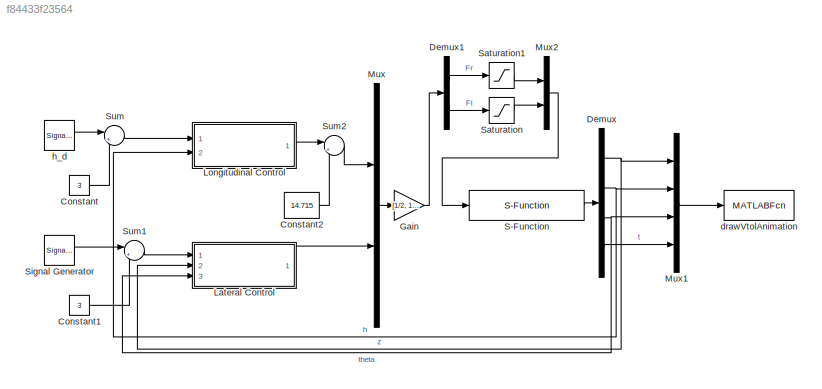
MODEL slx_f84433f23564
KIND model
CONFIG AbsTol = auto
CONFIG EnableMultiTasking = off
CONFIG FixedStep = auto
CONFIG InitFcn = planar_vtol_param\n
CONFIG MaxStep = 1
CONFIG MinStep = .75
CONFIG RelTol = 1e-3
CONFIG SampleTimeConstraint = Unconstrained
CONFIG Solver = ode45
CONFIG SolverName = ode45
CONFIG StartTime = 0.0
CONFIG StopTime = 20
BLOCK [Constant] Constant
  Value = 3
BLOCK [Constant] Constant1
  Value = 3
BLOCK [Constant] Constant2
  Value = 14.715
BLOCK [Demux] Demux
  DisplayOption = bar
  Ports = [1, 4]
BLOCK [Demux] Demux1
  DisplayOption = bar
  Outputs = 2
  Ports = [1, 2]
BLOCK [Gain] Gain
  Gain = [1/2, 1/.6; 1/2, -1/.6]
  Multiplication = Matrix(K*u)
  OutDataTypeStr = Inherit: Inherit via internal rule
  ParamDataTypeStr = Inherit: Inherit via internal rule
  SaturateOnIntegerOverflow = off
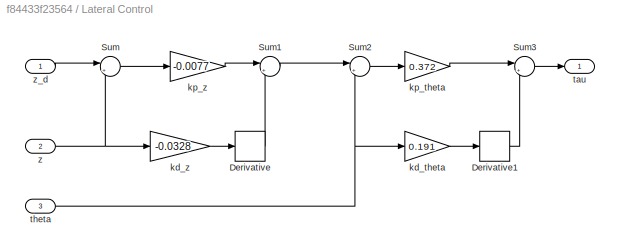
BLOCK [SubSystem] Lateral Control
  Ports = [3, 1]
  RequestExecContextInheritance = off
BLOCK [Derivative] Lateral Control/Derivative
BLOCK [Derivative] Lateral Control/Derivative1
BLOCK [Sum] Lateral Control/Sum
  IconShape = round
  InputSameDT = off
  Inputs = |+-
  OutDataTypeStr = Inherit: Inherit via internal rule
  Ports = [2, 1]
  SaturateOnIntegerOverflow = off
BLOCK [Sum] Lateral Control/Sum1
  IconShape = round
  InputSameDT = off
  Inputs = |+-
  OutDataTypeStr = Inherit: Inherit via internal rule
  Ports = [2, 1]
  SaturateOnIntegerOverflow = off
BLOCK [Sum] Lateral Control/Sum2
  IconShape = round
  InputSameDT = off
  Inputs = |+-
  OutDataTypeStr = Inherit: Inherit via internal rule
  Ports = [2, 1]
  SaturateOnIntegerOverflow = off
BLOCK [Sum] Lateral Control/Sum3
  IconShape = round
  InputSameDT = off
  Inputs = |+-
  OutDataTypeStr = Inherit: Inherit via internal rule
  Ports = [2, 1]
  SaturateOnIntegerOverflow = off
BLOCK [Gain] Lateral Control/kd_theta
  Gain = 0.191
  OutDataTypeStr = Inherit: Inherit via internal rule
  ParamDataTypeStr = Inherit: Inherit via internal rule
  SaturateOnIntegerOverflow = off
BLOCK [Gain] Lateral Control/kd_z
  Gain = -0.0328
  OutDataTypeStr = Inherit: Inherit via internal rule
  ParamDataTypeStr = Inherit: Inherit via internal rule
  SaturateOnIntegerOverflow = off
BLOCK [Gain] Lateral Control/kp_theta
  Gain = 0.372
  OutDataTypeStr = Inherit: Inherit via internal rule
  ParamDataTypeStr = Inherit: Inherit via internal rule
  SaturateOnIntegerOverflow = off
BLOCK [Gain] Lateral Control/kp_z
  Gain = -0.0077
  OutDataTypeStr = Inherit: Inherit via internal rule
  ParamDataTypeStr = Inherit: Inherit via internal rule
  SaturateOnIntegerOverflow = off
BLOCK [Outport] Lateral Control/tau
  IconDisplay = Port number
BLOCK [Inport] Lateral Control/theta
  IconDisplay = Port number
  Port = 3
BLOCK [Inport] Lateral Control/z
  IconDisplay = Port number
  Port = 2
BLOCK [Inport] Lateral Control/z_d
  IconDisplay = Port number
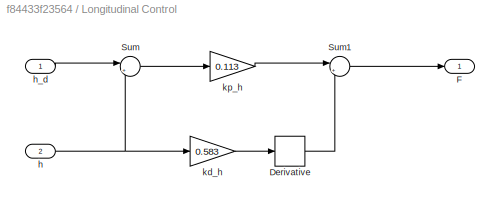
BLOCK [SubSystem] Longitudinal Control
  Ports = [2, 1]
  RequestExecContextInheritance = off
BLOCK [Derivative] Longitudinal Control/Derivative
BLOCK [Outport] Longitudinal Control/F
  IconDisplay = Port number
BLOCK [Sum] Longitudinal Control/Sum
  IconShape = round
  InputSameDT = off
  Inputs = |+-
  OutDataTypeStr = Inherit: Inherit via internal rule
  Ports = [2, 1]
  SaturateOnIntegerOverflow = off
BLOCK [Sum] Longitudinal Control/Sum1
  IconShape = round
  InputSameDT = off
  Inputs = |+-
  OutDataTypeStr = Inherit: Inherit via internal rule
  Ports = [2, 1]
  SaturateOnIntegerOverflow = off
BLOCK [Inport] Longitudinal Control/h
  IconDisplay = Port number
  Port = 2
BLOCK [Inport] Longitudinal Control/h_d
  IconDisplay = Port number
BLOCK [Gain] Longitudinal Control/kd_h
  Gain = 0.583
  OutDataTypeStr = Inherit: Inherit via internal rule
  ParamDataTypeStr = Inherit: Inherit via internal rule
  SaturateOnIntegerOverflow = off
BLOCK [Gain] Longitudinal Control/kp_h
  Gain = 0.113
  OutDataTypeStr = Inherit: Inherit via internal rule
  ParamDataTypeStr = Inherit: Inherit via internal rule
  SaturateOnIntegerOverflow = off
BLOCK [Mux] Mux
  DisplayOption = bar
  Inputs = 2
  Ports = [2, 1]
BLOCK [Mux] Mux1
  DisplayOption = bar
  Ports = [4, 1]
BLOCK [Mux] Mux2
  DisplayOption = bar
  Inputs = 2
  Ports = [2, 1]
BLOCK [S-Function] S-Function
  EnableBusSupport = off
  FunctionName = planar_vtol_dynamics
  Parameters = Pa
  Ports = [1, 1]
  SFcnIsStateOwnerBlock = off
  SFunctionDeploymentMode = off
BLOCK [Saturate] Saturation
  InputPortMap = u0
  LowerLimit = -10
  Ports = [1, 1]
  UpperLimit = 10
BLOCK [Saturate] Saturation1
  InputPortMap = u0
  LowerLimit = -10
  Ports = [1, 1]
  UpperLimit = 10
BLOCK [SignalGenerator] Signal Generator
  Amplitude = 2.5
  Frequency = 0.08
  Ports = [0, 1]
  WaveForm = square
BLOCK [Sum] Sum
  IconShape = round
  InputSameDT = off
  Inputs = |++
  OutDataTypeStr = Inherit: Inherit via internal rule
  Ports = [2, 1]
  SaturateOnIntegerOverflow = off
BLOCK [Sum] Sum1
  IconShape = round
  InputSameDT = off
  Inputs = |++
  OutDataTypeStr = Inherit: Inherit via internal rule
  Ports = [2, 1]
  SaturateOnIntegerOverflow = off
BLOCK [Sum] Sum2
  IconShape = round
  InputSameDT = off
  Inputs = |++
  OutDataTypeStr = Inherit: Inherit via internal rule
  Ports = [2, 1]
  SaturateOnIntegerOverflow = off
BLOCK [MATLABFcn] drawVtolAnimation
  MATLABFcn = planar_vtol_animation(u)
  OutputDimensions = 0
  Ports = [1]
BLOCK [SignalGenerator] h_d
  Amplitude = 2.5
  Frequency = 0.08
  Ports = [0, 1]
  WaveForm = square
LINE Constant1:1 -> Sum1:2
LINE Constant2:1 -> Sum2:2
LINE Constant:1 -> Sum:2
LINE Demux1:1 -> Saturation1:1
LINE Demux1:2 -> Saturation:1
NET Demux:1 -> Lateral Control:2, Mux1:1
NET Demux:2 -> Longitudinal Control:2, Mux1:2
NET Demux:3 -> Lateral Control:3, Mux1:3
LINE Demux:4 -> Mux1:4
LINE Gain:1 -> Demux1:1
LINE Lateral Control/Derivative1:1 -> Lateral Control/Sum3:2
LINE Lateral Control/Derivative:1 -> Lateral Control/Sum1:2
LINE Lateral Control/Sum1:1 -> Lateral Control/Sum2:1
LINE Lateral Control/Sum2:1 -> Lateral Control/kp_theta:1
LINE Lateral Control/Sum3:1 -> Lateral Control/tau:1
LINE Lateral Control/Sum:1 -> Lateral Control/kp_z:1
LINE Lateral Control/kd_theta:1 -> Lateral Control/Derivative1:1
LINE Lateral Control/kd_z:1 -> Lateral Control/Derivative:1
LINE Lateral Control/kp_theta:1 -> Lateral Control/Sum3:1
LINE Lateral Control/kp_z:1 -> Lateral Control/Sum1:1
NET Lateral Control/theta:1 -> Lateral Control/Sum2:2, Lateral Control/kd_theta:1
NET Lateral Control/z:1 -> Lateral Control/Sum:2, Lateral Control/kd_z:1
LINE Lateral Control/z_d:1 -> Lateral Control/Sum:1
LINE Lateral Control:1 -> Mux:2
LINE Longitudinal Control/Derivative:1 -> Longitudinal Control/Sum1:2
LINE Longitudinal Control/Sum1:1 -> Longitudinal Control/F:1
LINE Longitudinal Control/Sum:1 -> Longitudinal Control/kp_h:1
NET Longitudinal Control/h:1 -> Longitudinal Control/Sum:2, Longitudinal Control/kd_h:1
LINE Longitudinal Control/h_d:1 -> Longitudinal Control/Sum:1
LINE Longitudinal Control/kd_h:1 -> Longitudinal Control/Derivative:1
LINE Longitudinal Control/kp_h:1 -> Longitudinal Control/Sum1:1
LINE Longitudinal Control:1 -> Sum2:1
LINE Mux1:1 -> drawVtolAnimation:1
LINE Mux2:1 -> S-Function:1
LINE Mux:1 -> Gain:1
LINE S-Function:1 -> Demux:1
LINE Saturation1:1 -> Mux2:1
LINE Saturation:1 -> Mux2:2
LINE Signal Generator:1 -> Sum1:1
LINE Sum1:1 -> Lateral Control:1
LINE Sum2:1 -> Mux:1
LINE Sum:1 -> Longitudinal Control:1
LINE h_d:1 -> Sum:1
note: NET lines group one-source signal fan-out (src -> all destinations, sorted); 1:1 wires keep LINE
